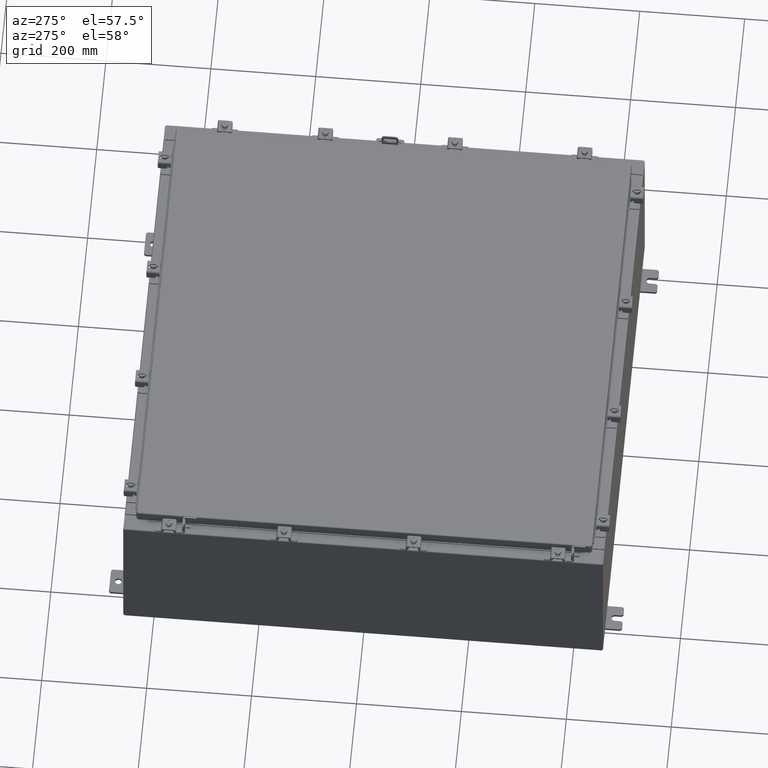
[diagram: clean part render]
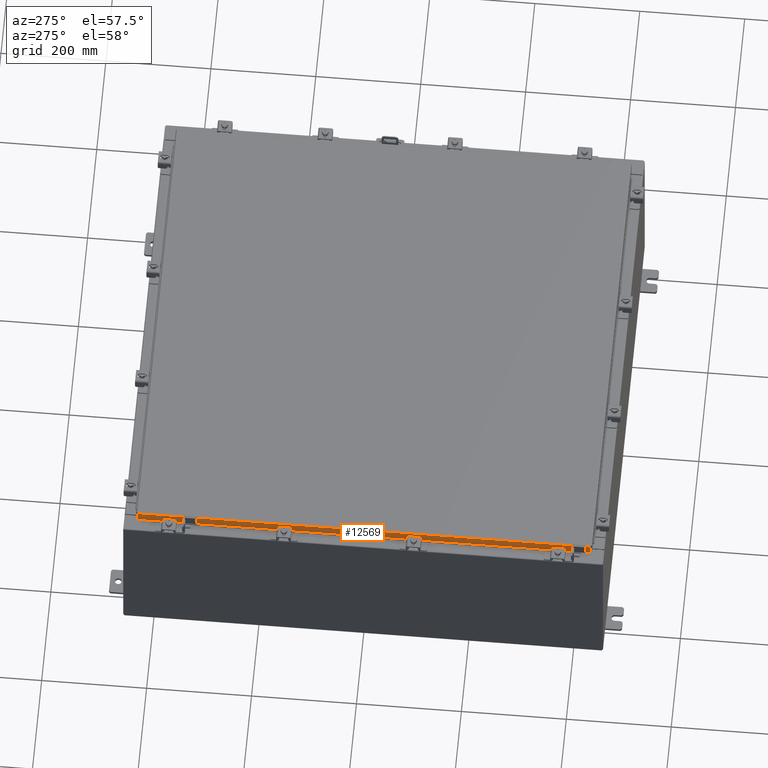
[diagram: same view with one face highlighted and labeled with its STEP entity id]
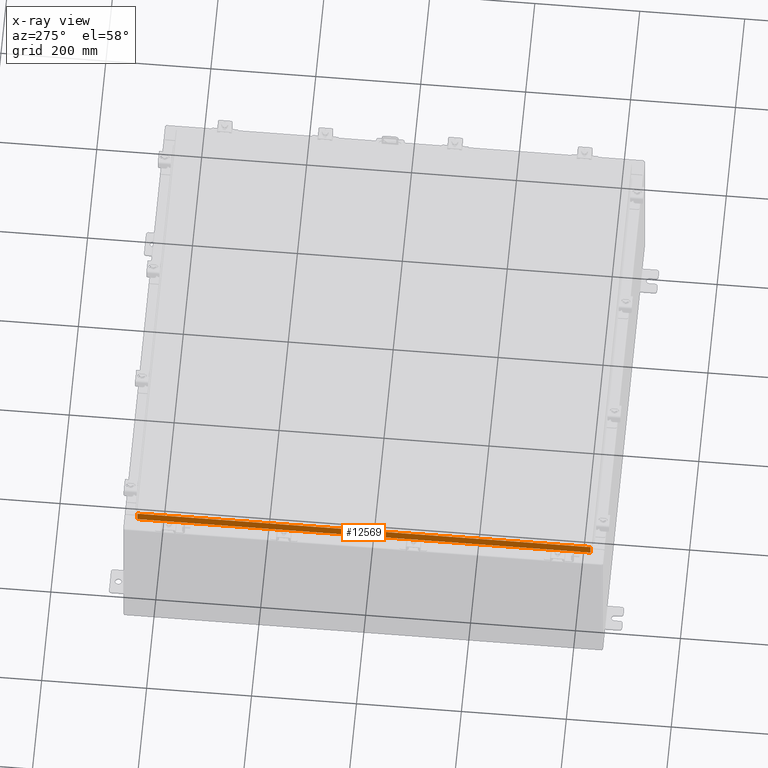
[diagram: x-ray of the same camera — body ghosted, the highlighted face saturated]
A machine part, auxiliary view. The second image highlights one B-rep face of the part: STEP entity #12569.
The next image is the same camera in x-ray: the body ghosted, the highlighted face saturated — about 0% of this face is hidden behind the body in this view.
In plain terms, the highlighted planar face has unit normal (1, 0, -0).
Its self-contained STEP definition (entity closure, byte-faithful):
#114 = EDGE_CURVE ( 'NONE', #13277, #5300, #5596, .T. ) ;
#180 = ORIENTED_EDGE ( 'NONE', *, *, #114, .F. ) ;
#383 = CARTESIAN_POINT ( 'NONE',  ( -17.09399999999999400, 16.25515786437627200, -0.8500000000000020900 ) ) ;
#982 = EDGE_LOOP ( 'NONE', ( #4283, #4264, #20382, #180, #16874, #3437 ) ) ;
#2855 = FACE_OUTER_BOUND ( 'NONE', #982, .T. ) ;
#2941 = CARTESIAN_POINT ( 'NONE',  ( -17.09400000000000100, -17.00515786437626900, -0.07470000000000015500 ) ) ;
#3437 = ORIENTED_EDGE ( 'NONE', *, *, #17227, .F. ) ;
#4264 = ORIENTED_EDGE ( 'NONE', *, *, #7705, .T. ) ;
#4283 = ORIENTED_EDGE ( 'NONE', *, *, #10360, .F. ) ;
#5085 = DIRECTION ( 'NONE',  ( -2.818880942772360500E-015, 6.982962677686269100E-015, -1.000000000000000000 ) ) ;
#5283 = VECTOR ( 'NONE', #26299, 39.37007874015748100 ) ;
#5300 = VERTEX_POINT ( 'NONE', #383 ) ;
#5596 = LINE ( 'NONE', #8105, #10563 ) ;
#5699 = DIRECTION ( 'NONE',  ( -0.0000000000000000000, 1.000000000000000000, -0.0000000000000000000 ) ) ;
#6084 = DIRECTION ( 'NONE',  ( -2.818880942772360500E-015, 6.982962677686269100E-015, -1.000000000000000000 ) ) ;
#6919 = VERTEX_POINT ( 'NONE', #24597 ) ;
#7275 = DIRECTION ( 'NONE',  ( 1.000000000000000000, 3.491332948470575600E-031, -2.818880942772360100E-015 ) ) ;
#7705 = EDGE_CURVE ( 'NONE', #10597, #10560, #17317, .T. ) ;
#7839 = VERTEX_POINT ( 'NONE', #19352 ) ;
#8105 = CARTESIAN_POINT ( 'NONE',  ( -17.09399999999999400, -16.25515786437626900, -0.8500000000000020900 ) ) ;
#8304 = VECTOR ( 'NONE', #5085, 39.37007874015748100 ) ;
#8966 = LINE ( 'NONE', #2941, #8304 ) ;
#9891 = CARTESIAN_POINT ( 'NONE',  ( -17.09400000000000100, -17.09400000000000100, -0.8499999999999999800 ) ) ;
#10360 = EDGE_CURVE ( 'NONE', #10597, #7839, #23381, .T. ) ;
#10367 = CARTESIAN_POINT ( 'NONE',  ( -17.09400000000000100, 17.00515786437626900, -0.08770000000000026400 ) ) ;
#10560 = VERTEX_POINT ( 'NONE', #16546 ) ;
#10563 = VECTOR ( 'NONE', #5699, 39.37007874015748100 ) ;
#10597 = VERTEX_POINT ( 'NONE', #10367 ) ;
#11474 = LINE ( 'NONE', #14665, #12126 ) ;
#12098 = EDGE_CURVE ( 'NONE', #5300, #10560, #11474, .T. ) ;
#12126 = VECTOR ( 'NONE', #18995, 39.37007874015748100 ) ;
#12569 = ADVANCED_FACE ( 'NONE', ( #2855 ), #24001, .F. ) ;
#13277 = VERTEX_POINT ( 'NONE', #20432 ) ;
#14665 = CARTESIAN_POINT ( 'NONE',  ( -17.09400000000000100, -17.09400000000000100, -0.8499999999999999800 ) ) ;
#15502 = VECTOR ( 'NONE', #16255, 39.37007874015748100 ) ;
#16255 = DIRECTION ( 'NONE',  ( 4.379057701015054300E-047, 1.000000000000000000, 1.238552822680358400E-016 ) ) ;
#16546 = CARTESIAN_POINT ( 'NONE',  ( -17.09400000000000100, 17.00515786437627600, -0.8499999999999955400 ) ) ;
#16622 = CARTESIAN_POINT ( 'NONE',  ( -17.09400000000000100, 17.00515786437626900, 1.682818364097186200E-013 ) ) ;
#16874 = ORIENTED_EDGE ( 'NONE', *, *, #22433, .F. ) ;
#17227 = EDGE_CURVE ( 'NONE', #7839, #6919, #8966, .T. ) ;
#17317 = LINE ( 'NONE', #16622, #22855 ) ;
#18995 = DIRECTION ( 'NONE',  ( 4.379057701015054300E-047, 1.000000000000000000, 1.238552822680358400E-016 ) ) ;
#19352 = CARTESIAN_POINT ( 'NONE',  ( -17.09400000000000100, -17.00515786437626900, -0.08770000000000026400 ) ) ;
#19911 = CARTESIAN_POINT ( 'NONE',  ( -17.09400000000000100, 0.0000000000000000000, 4.808052468849102900E-014 ) ) ;
#20382 = ORIENTED_EDGE ( 'NONE', *, *, #12098, .F. ) ;
#20432 = CARTESIAN_POINT ( 'NONE',  ( -17.09399999999999400, -16.25515786437626500, -0.8500000000000020900 ) ) ;
#21996 = DIRECTION ( 'NONE',  ( -2.818880942772360100E-015, 0.0000000000000000000, -1.000000000000000000 ) ) ;
#22380 = LINE ( 'NONE', #9891, #15502 ) ;
#22433 = EDGE_CURVE ( 'NONE', #6919, #13277, #22380, .T. ) ;
#22855 = VECTOR ( 'NONE', #6084, 39.37007874015748100 ) ;
#23381 = LINE ( 'NONE', #24304, #5283 ) ;
#24001 = PLANE ( 'NONE',  #26074 ) ;
#24304 = CARTESIAN_POINT ( 'NONE',  ( -17.09400000000000100, -17.09400000000000100, -0.08770000000000026400 ) ) ;
#24597 = CARTESIAN_POINT ( 'NONE',  ( -17.09400000000000100, -17.00515786437626500, -0.8499999999999999800 ) ) ;
#26074 = AXIS2_PLACEMENT_3D ( 'NONE', #19911, #7275, #21996 ) ;
#26299 = DIRECTION ( 'NONE',  ( 3.491332948470575600E-031, -1.000000000000000000, -9.516562228463833000E-046 ) ) ;